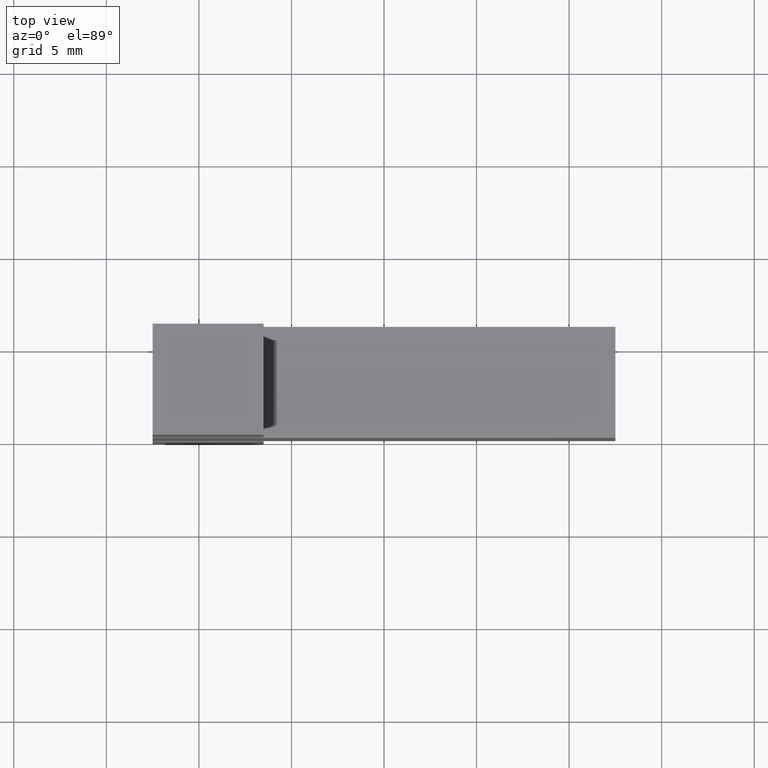
[diagram: clean part render]
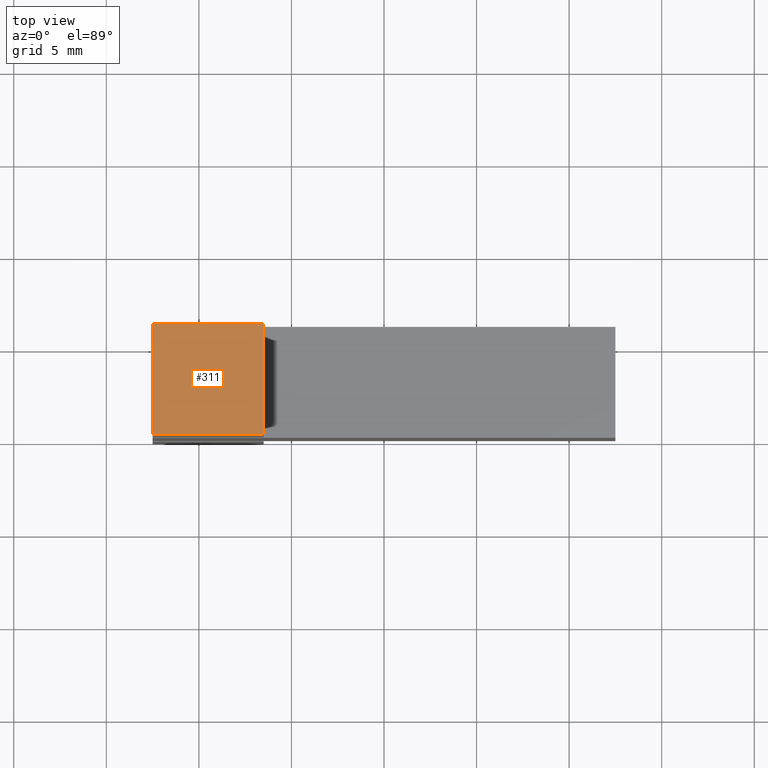
[diagram: same view with one face highlighted and labeled with its STEP entity id]
A machine part, top view. The second image highlights one B-rep face of the part: STEP entity #311.
In plain terms, the highlighted planar face has unit normal (-0, 0, 1).
Its self-contained STEP definition (entity closure, byte-faithful):
#25=FACE_OUTER_BOUND('',#41,.T.);
#41=EDGE_LOOP('',(#253,#254,#255,#256));
#62=LINE('',#464,#104);
#70=LINE('',#479,#112);
#80=LINE('',#498,#122);
#81=LINE('',#500,#123);
#104=VECTOR('',#380,10.);
#112=VECTOR('',#392,10.);
#122=VECTOR('',#408,10.);
#123=VECTOR('',#411,10.);
#143=VERTEX_POINT('',#461);
#144=VERTEX_POINT('',#463);
#149=VERTEX_POINT('',#478);
#155=VERTEX_POINT('',#496);
#174=EDGE_CURVE('',#144,#143,#62,.T.);
#182=EDGE_CURVE('',#144,#149,#70,.T.);
#192=EDGE_CURVE('',#143,#155,#80,.T.);
#193=EDGE_CURVE('',#149,#155,#81,.T.);
#253=ORIENTED_EDGE('',*,*,#174,.T.);
#254=ORIENTED_EDGE('',*,*,#192,.T.);
#255=ORIENTED_EDGE('',*,*,#193,.F.);
#256=ORIENTED_EDGE('',*,*,#182,.F.);
#295=PLANE('',#347);
#311=ADVANCED_FACE('',(#25),#295,.T.);
#347=AXIS2_PLACEMENT_3D('',#499,#409,#410);
#380=DIRECTION('',(1.,0.,2.96059473233376E-15));
#392=DIRECTION('',(0.,1.,0.));
#408=DIRECTION('',(0.,1.,0.));
#409=DIRECTION('center_axis',(-2.96059473233376E-15,0.,1.));
#410=DIRECTION('ref_axis',(1.,0.,2.96059473233376E-15));
#411=DIRECTION('',(1.,0.,2.96059473233376E-15));
#461=CARTESIAN_POINT('',(-6.5,0.,15.));
#463=CARTESIAN_POINT('',(-12.5,0.,15.));
#464=CARTESIAN_POINT('',(-12.5,0.,15.));
#478=CARTESIAN_POINT('',(-12.5,6.,15.));
#479=CARTESIAN_POINT('',(-12.5,0.,15.));
#496=CARTESIAN_POINT('',(-6.5,6.,15.));
#498=CARTESIAN_POINT('',(-6.5,0.,15.));
#499=CARTESIAN_POINT('Origin',(-12.5,0.,15.));
#500=CARTESIAN_POINT('',(-12.5,6.,15.));